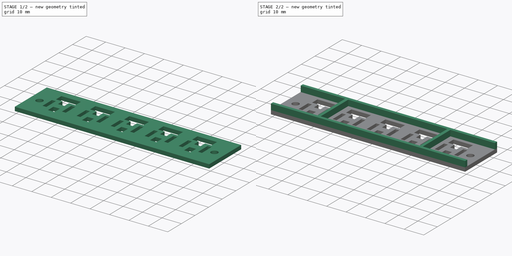
[diagram: build sequence overview — one tinted view per stage of 2, left to right]
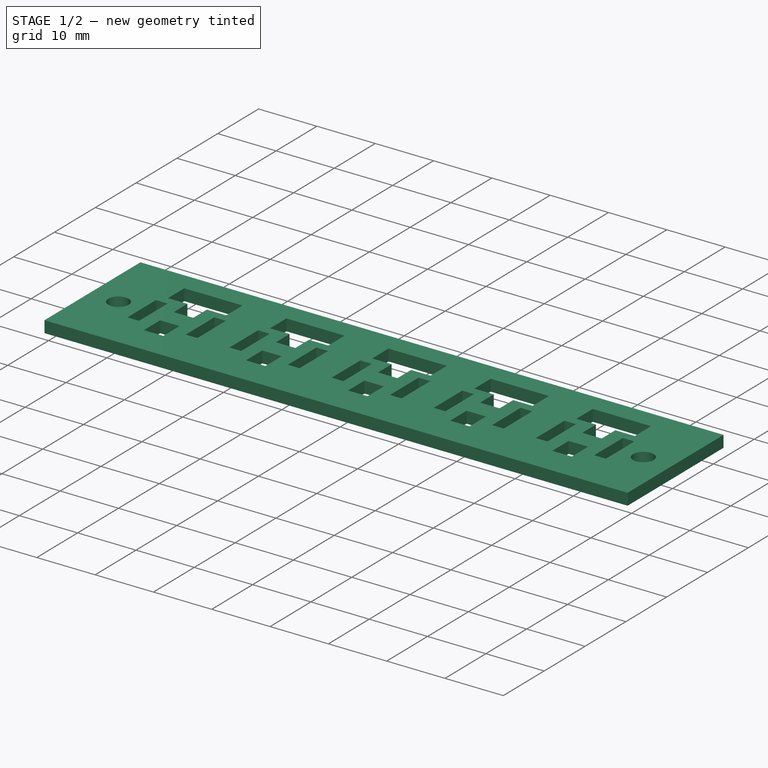
[diagram: stage 1 of 2 — iso view after this stage's code; geometry added in this stage tinted green]
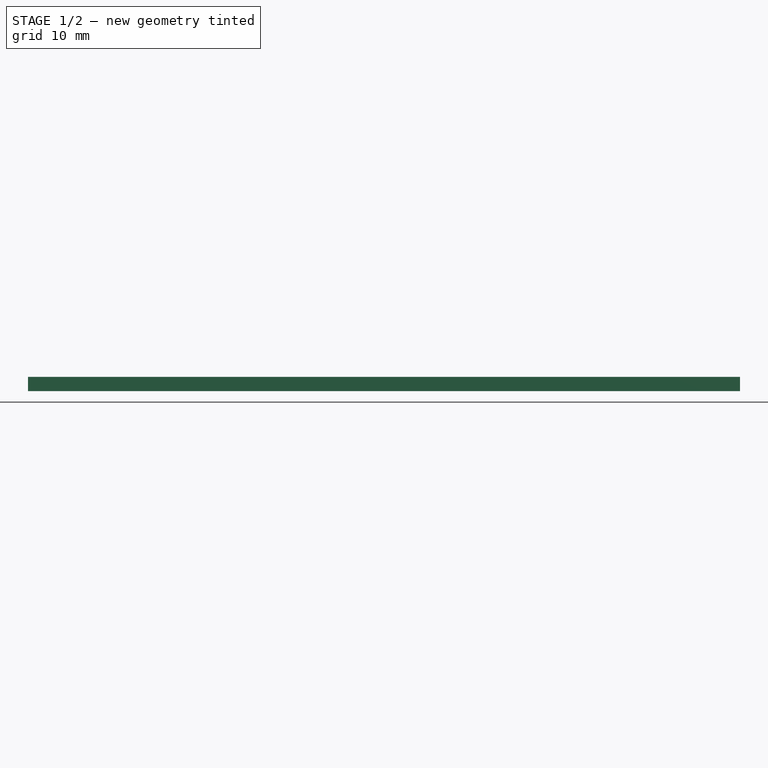
[diagram: stage 1 of 2 — front view after this stage's code; geometry added in this stage tinted green]
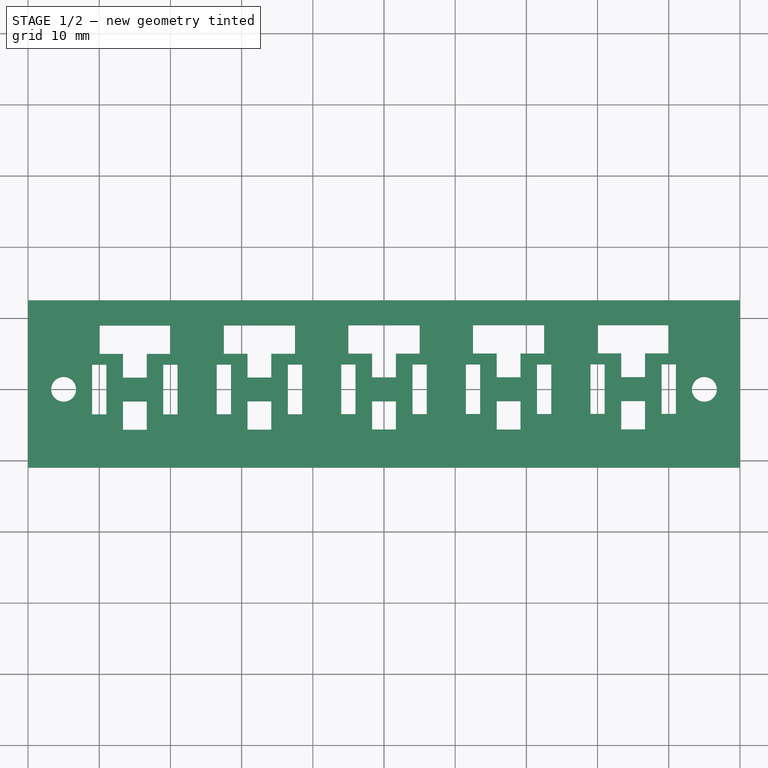
[diagram: stage 1 of 2 — top view after this stage's code; geometry added in this stage tinted green]
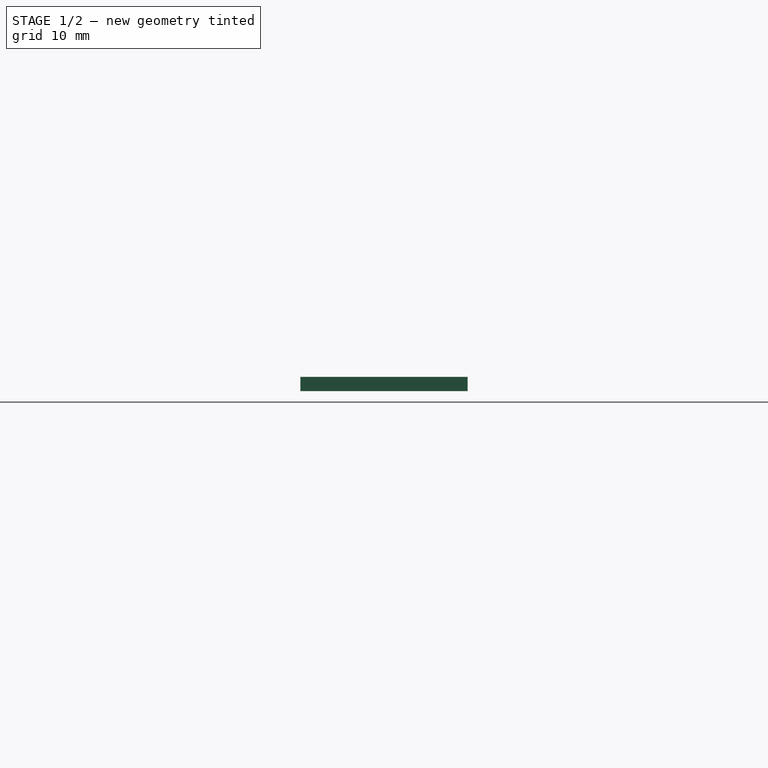
[diagram: stage 1 of 2 — right view after this stage's code; geometry added in this stage tinted green]
FCSTD DOCUMENT  (FreeCAD 0.20R29410 (Git))
Label: Potentiometers-Top
License: All rights reserved
LicenseURL: https://en.wikipedia.org/wiki/All_rights_reserved
objects: App::DocumentObjectGroup×3, PartDesign::CoordinateSystem×2, Sketcher::SketchObject×2, PartDesign::Pad×2, App::FeaturePython×1, PartDesign::Body×1, App::Part×1
note: 9 computed .brp shape members not serialized (recipe doc carries the construction recipe); baked Part::Feature solids carry a one-line shape summary decoded from their .brp

FEATURE [App::DocumentObjectGroup] Parts
FEATURE [PartDesign::CoordinateSystem] LCS_Origin
  AttacherType = Attacher::AttachEngine3D
  MapMode = 2
  Support = -> [X_Axis]
FEATURE [App::DocumentObjectGroup] Constraints
FEATURE [App::FeaturePython] Variables  # WARN: FeaturePython — macro-defined, semantics opaque (R4)
  Type = App::PropertyContainer
FEATURE [App::DocumentObjectGroup] Configurations
FEATURE [PartDesign::CoordinateSystem] LCS_Origin001
  AttacherType = Attacher::AttachEngine3D
  MapMode = 2
  Support = -> [X_Axis001]
FEATURE [Sketcher::SketchObject] Sketch
  FullyConstrained = true
  MapMode = 5
  Support = -> [XY_Plane001]
  sketch-geometry (120):
    g0: LineSegment StartX=-50 StartY=12.5 StartZ=0 EndX=50 EndY=12.5 EndZ=0
    g1: LineSegment StartX=50 StartY=12.5 StartZ=0 EndX=50 EndY=-11 EndZ=0
    g2: LineSegment StartX=50 StartY=-11 StartZ=0 EndX=-50 EndY=-11 EndZ=0
    g3: LineSegment StartX=-50 StartY=-11 StartZ=0 EndX=-50 EndY=12.5 EndZ=0
    g4: Circle CenterX=-45 CenterY=0 CenterZ=0 NormalX=0 NormalY=0 NormalZ=1 AngleXU=0 Radius=1.75
    g5: Circle CenterX=45 CenterY=0 CenterZ=0 NormalX=0 NormalY=0 NormalZ=1 AngleXU=0 Radius=1.75
    g6: LineSegment StartX=-40 StartY=8.97002 StartZ=0 EndX=-30 EndY=8.97002 EndZ=0
    g7: LineSegment StartX=-30 StartY=8.97002 StartZ=0 EndX=-30 EndY=4.97002 EndZ=0
    g8: LineSegment StartX=-40 StartY=4.97002 StartZ=0 EndX=-40 EndY=8.97002 EndZ=0
    g9: LineSegment StartX=-41 StartY=3.47002 StartZ=0 EndX=-39 EndY=3.47002 EndZ=0
    g10: LineSegment StartX=-39 StartY=3.47002 StartZ=0 EndX=-39 EndY=-3.52998 EndZ=0
    g11: LineSegment StartX=-39 StartY=-3.52998 StartZ=0 EndX=-41 EndY=-3.52998 EndZ=0
    g12: LineSegment StartX=-41 StartY=-3.52998 StartZ=0 EndX=-41 EndY=3.47002 EndZ=0
    g13: LineSegment StartX=-31 StartY=3.47002 StartZ=0 EndX=-29 EndY=3.47002 EndZ=0
    g14: LineSegment StartX=-29 StartY=3.47002 StartZ=0 EndX=-29 EndY=-3.52998 EndZ=0
    g15: LineSegment StartX=-29 StartY=-3.52998 StartZ=0 EndX=-31 EndY=-3.52998 EndZ=0
    g16: LineSegment StartX=-31 StartY=-3.52998 StartZ=0 EndX=-31 EndY=3.47002 EndZ=0
    g17: GeomPoint X=-35 Y=6.97002 Z=0
    g18: GeomPoint X=-35 Y=-0.0299752 Z=0
    g19: LineSegment StartX=-22.5 StartY=8.98501 StartZ=0 EndX=-12.5 EndY=8.98501 EndZ=0
    g20: LineSegment StartX=-12.5 StartY=8.98501 StartZ=0 EndX=-12.5 EndY=4.98501 EndZ=0
    g21: LineSegment StartX=-22.5 StartY=4.98501 StartZ=0 EndX=-22.5 EndY=8.98501 EndZ=0
    g22: LineSegment StartX=-23.5 StartY=3.48501 StartZ=0 EndX=-21.5 EndY=3.48501 EndZ=0
    g23: LineSegment StartX=-21.5 StartY=3.48501 StartZ=0 EndX=-21.5 EndY=-3.51499 EndZ=0
    g24: LineSegment StartX=-21.5 StartY=-3.51499 StartZ=0 EndX=-23.5 EndY=-3.51499 EndZ=0
    g25: LineSegment StartX=-23.5 StartY=-3.51499 StartZ=0 EndX=-23.5 EndY=3.48501 EndZ=0
    g26: LineSegment StartX=-13.5 StartY=3.48501 StartZ=0 EndX=-11.5 EndY=3.48501 EndZ=0
    g27: LineSegment StartX=-11.5 StartY=3.48501 StartZ=0 EndX=-11.5 EndY=-3.51499 EndZ=0
    g28: LineSegment StartX=-11.5 StartY=-3.51499 StartZ=0 EndX=-13.5 EndY=-3.51499 EndZ=0
    g29: LineSegment StartX=-13.5 StartY=-3.51499 StartZ=0 EndX=-13.5 EndY=3.48501 EndZ=0
    g30: GeomPoint X=-17.5 Y=6.98501 Z=0
    g31: GeomPoint X=-17.5 Y=-0.0149876 Z=0
    g32: LineSegment StartX=-40 StartY=8.97002 StartZ=0 EndX=-22.5 EndY=8.98501 EndZ=0
    g33: LineSegment StartX=-5 StartY=9 StartZ=0 EndX=5 EndY=9 EndZ=0
    g34: LineSegment StartX=5 StartY=9 StartZ=0 EndX=5 EndY=5 EndZ=0
    g35: LineSegment StartX=-5 StartY=5 StartZ=0 EndX=-5 EndY=9 EndZ=0
    g36: LineSegment StartX=-6 StartY=3.5 StartZ=0 EndX=-4 EndY=3.5 EndZ=0
    g37: LineSegment StartX=-4 StartY=3.5 StartZ=0 EndX=-4 EndY=-3.5 EndZ=0
    g38: LineSegment StartX=-4 StartY=-3.5 StartZ=0 EndX=-6 EndY=-3.5 EndZ=0
    g39: LineSegment StartX=-6 StartY=-3.5 StartZ=0 EndX=-6 EndY=3.5 EndZ=0
    g40: LineSegment StartX=4 StartY=3.5 StartZ=0 EndX=6 EndY=3.5 EndZ=0
    g41: LineSegment StartX=6 StartY=3.5 StartZ=0 EndX=6 EndY=-3.5 EndZ=0
    g42: LineSegment StartX=6 StartY=-3.5 StartZ=0 EndX=4 EndY=-3.5 EndZ=0
    g43: LineSegment StartX=4 StartY=-3.5 StartZ=0 EndX=4 EndY=3.5 EndZ=0
    g44: GeomPoint X=0 Y=7 Z=0
    g45: GeomPoint X=0 Y=0 Z=0
    g46: LineSegment StartX=-22.5 StartY=8.98501 StartZ=0 EndX=-5 EndY=9 EndZ=0
    g47: LineSegment StartX=12.5 StartY=9.01499 StartZ=0 EndX=22.5 EndY=9.01499 EndZ=0
    g48: LineSegment StartX=22.5 StartY=9.01499 StartZ=0 EndX=22.5 EndY=5.01499 EndZ=0
    g49: LineSegment StartX=12.5 StartY=5.01499 StartZ=0 EndX=12.5 EndY=9.01499 EndZ=0
    g50: LineSegment StartX=11.5 StartY=3.51499 StartZ=0 EndX=13.5 EndY=3.51499 EndZ=0
    g51: LineSegment StartX=13.5 StartY=3.51499 StartZ=0 EndX=13.5 EndY=-3.48501 EndZ=0
    g52: LineSegment StartX=13.5 StartY=-3.48501 StartZ=0 EndX=11.5 EndY=-3.48501 EndZ=0
    g53: LineSegment StartX=11.5 StartY=-3.48501 StartZ=0 EndX=11.5 EndY=3.51499 EndZ=0
    g54: LineSegment StartX=21.5 StartY=3.51499 StartZ=0 EndX=23.5 EndY=3.51499 EndZ=0
    g55: LineSegment StartX=23.5 StartY=3.51499 StartZ=0 EndX=23.5 EndY=-3.48501 EndZ=0
    g56: LineSegment StartX=23.5 StartY=-3.48501 StartZ=0 EndX=21.5 EndY=-3.48501 EndZ=0
    g57: LineSegment StartX=21.5 StartY=-3.48501 StartZ=0 EndX=21.5 EndY=3.51499 EndZ=0
    g58: GeomPoint X=17.5 Y=7.01499 Z=0
    g59: GeomPoint X=17.5 Y=0.0149876 Z=0
    g60: LineSegment StartX=-5 StartY=9 StartZ=0 EndX=12.5 EndY=9.01499 EndZ=0
    g61: LineSegment StartX=30 StartY=9.02998 StartZ=0 EndX=40 EndY=9.02998 EndZ=0
    g62: LineSegment StartX=40 StartY=9.02998 StartZ=0 EndX=40 EndY=5.02998 EndZ=0
    g63: LineSegment StartX=30 StartY=5.02998 StartZ=0 EndX=30 EndY=9.02998 EndZ=0
    g64: LineSegment StartX=29 StartY=3.52998 StartZ=0 EndX=31 EndY=3.52998 EndZ=0
    g65: LineSegment StartX=31 StartY=3.52998 StartZ=0 EndX=31 EndY=-3.47002 EndZ=0
    g66: LineSegment StartX=31 StartY=-3.47002 StartZ=0 EndX=29 EndY=-3.47002 EndZ=0
    g67: LineSegment StartX=29 StartY=-3.47002 StartZ=0 EndX=29 EndY=3.52998 EndZ=0
    g68: LineSegment StartX=39 StartY=3.52998 StartZ=0 EndX=41 EndY=3.52998 EndZ=0
    g69: LineSegment StartX=41 StartY=3.52998 StartZ=0 EndX=41 EndY=-3.47002 EndZ=0
    g70: LineSegment StartX=41 StartY=-3.47002 StartZ=0 EndX=39 EndY=-3.47002 EndZ=0
    g71: LineSegment StartX=39 StartY=-3.47002 StartZ=0 EndX=39 EndY=3.52998 EndZ=0
    g72: GeomPoint X=35 Y=7.02998 Z=0
    g73: GeomPoint X=35 Y=0.0299752 Z=0
    g74: LineSegment StartX=12.5 StartY=9.01499 StartZ=0 EndX=30 EndY=9.02998 EndZ=0
    g75: LineSegment StartX=-40 StartY=4.97002 StartZ=0 EndX=-36.6667 EndY=4.97002 EndZ=0
    g76: LineSegment StartX=-30 StartY=4.97002 StartZ=0 EndX=-33.3333 EndY=4.97002 EndZ=0
    g77: LineSegment StartX=-36.6667 StartY=4.97002 StartZ=0 EndX=-36.6667 EndY=1.63669 EndZ=0
    g78: LineSegment StartX=-36.6667 StartY=1.63669 StartZ=0 EndX=-33.3333 EndY=1.63669 EndZ=0
    g79: LineSegment StartX=-33.3333 StartY=1.63669 StartZ=0 EndX=-33.3333 EndY=4.97002 EndZ=0
    g80: LineSegment StartX=-22.5 StartY=4.98501 StartZ=0 EndX=-19.1667 EndY=4.98501 EndZ=0
    g81: LineSegment StartX=-19.1667 StartY=4.98501 StartZ=0 EndX=-19.1667 EndY=1.65168 EndZ=0
    g82: LineSegment StartX=-19.1667 StartY=1.65168 StartZ=0 EndX=-15.8333 EndY=1.65168 EndZ=0
    g83: LineSegment StartX=-15.8333 StartY=1.65168 StartZ=0 EndX=-15.8333 EndY=4.98501 EndZ=0
    g84: LineSegment StartX=-15.8333 StartY=4.98501 StartZ=0 EndX=-12.5 EndY=4.98501 EndZ=0
    g85: LineSegment StartX=-5 StartY=5 StartZ=0 EndX=-1.66667 EndY=5 EndZ=0
    g86: LineSegment StartX=-1.66667 StartY=5 StartZ=0 EndX=-1.66667 EndY=1.66667 EndZ=0
    g87: LineSegment StartX=-1.66667 StartY=1.66667 StartZ=0 EndX=1.66667 EndY=1.66667 EndZ=0
    g88: LineSegment StartX=1.66667 StartY=1.66667 StartZ=0 EndX=1.66667 EndY=5 EndZ=0
    g89: LineSegment StartX=1.66667 StartY=5 StartZ=0 EndX=5 EndY=5 EndZ=0
    g90: LineSegment StartX=12.5 StartY=5.01499 StartZ=0 EndX=15.8333 EndY=5.01499 EndZ=0
    g91: LineSegment StartX=15.8333 StartY=5.01499 StartZ=0 EndX=15.8333 EndY=1.68165 EndZ=0
    g92: LineSegment StartX=15.8333 StartY=1.68165 StartZ=0 EndX=19.1667 EndY=1.68165 EndZ=0
    g93: LineSegment StartX=19.1667 StartY=1.68165 StartZ=0 EndX=19.1667 EndY=5.01499 EndZ=0
    g94: LineSegment StartX=19.1667 StartY=5.01499 StartZ=0 EndX=22.5 EndY=5.01499 EndZ=0
    g95: LineSegment StartX=30 StartY=5.02998 StartZ=0 EndX=33.3333 EndY=5.02998 EndZ=0
    g96: LineSegment StartX=33.3333 StartY=5.02998 StartZ=0 EndX=33.3333 EndY=1.69664 EndZ=0
    g97: LineSegment StartX=33.3333 StartY=1.69664 StartZ=0 EndX=36.6667 EndY=1.69664 EndZ=0
    g98: LineSegment StartX=36.6667 StartY=1.69664 StartZ=0 EndX=36.6667 EndY=5.02998 EndZ=0
    g99: LineSegment StartX=36.6667 StartY=5.02998 StartZ=0 EndX=40 EndY=5.02998 EndZ=0
    g100: LineSegment StartX=33.3333 StartY=-1.63669 StartZ=0 EndX=36.6667 EndY=-1.63669 EndZ=0
    g101: LineSegment StartX=36.6667 StartY=-1.63669 StartZ=0 EndX=36.6667 EndY=-5.63669 EndZ=0
    g102: LineSegment StartX=36.6667 StartY=-5.63669 StartZ=0 EndX=33.3333 EndY=-5.63669 EndZ=0
    g103: LineSegment StartX=33.3333 StartY=-5.63669 StartZ=0 EndX=33.3333 EndY=-1.63669 EndZ=0
    g104: LineSegment StartX=-36.6667 StartY=-1.69664 StartZ=0 EndX=-33.3333 EndY=-1.69664 EndZ=0
    g105: LineSegment StartX=-33.3333 StartY=-1.69664 StartZ=0 EndX=-33.3333 EndY=-5.69664 EndZ=0
    g106: LineSegment StartX=-33.3333 StartY=-5.69664 StartZ=0 EndX=-36.6667 EndY=-5.69664 EndZ=0
    g107: LineSegment StartX=-36.6667 StartY=-5.69664 StartZ=0 EndX=-36.6667 EndY=-1.69664 EndZ=0
    g108: LineSegment StartX=-19.1667 StartY=-1.68165 StartZ=0 EndX=-15.8333 EndY=-1.68165 EndZ=0
    g109: LineSegment StartX=-15.8333 StartY=-1.68165 StartZ=0 EndX=-15.8333 EndY=-5.68165 EndZ=0
    g110: LineSegment StartX=-15.8333 StartY=-5.68165 StartZ=0 EndX=-19.1667 EndY=-5.68165 EndZ=0
    g111: LineSegment StartX=-19.1667 StartY=-5.68165 StartZ=0 EndX=-19.1667 EndY=-1.68165 EndZ=0
    g112: LineSegment StartX=-1.66667 StartY=-1.66667 StartZ=0 EndX=1.66667 EndY=-1.66667 EndZ=0
    g113: LineSegment StartX=1.66667 StartY=-1.66667 StartZ=0 EndX=1.66667 EndY=-5.66667 EndZ=0
    g114: LineSegment StartX=1.66667 StartY=-5.66667 StartZ=0 EndX=-1.66667 EndY=-5.66667 EndZ=0
    g115: LineSegment StartX=-1.66667 StartY=-5.66667 StartZ=0 EndX=-1.66667 EndY=-1.66667 EndZ=0
    g116: LineSegment StartX=15.8333 StartY=-1.65168 StartZ=0 EndX=19.1667 EndY=-1.65168 EndZ=0
    g117: LineSegment StartX=19.1667 StartY=-1.65168 StartZ=0 EndX=19.1667 EndY=-5.65168 EndZ=0
    g118: LineSegment StartX=19.1667 StartY=-5.65168 StartZ=0 EndX=15.8333 EndY=-5.65168 EndZ=0
    g119: LineSegment StartX=15.8333 StartY=-5.65168 StartZ=0 EndX=15.8333 EndY=-1.65168 EndZ=0
  constraints (329):
    c: Coincident(g0,g1)
    c: Coincident(g1,g2)
    c: Coincident(g2,g3)
    c: Coincident(g3,g0)
    c: Horizontal(g0)
    c: Horizontal(g2)
    c: Vertical(g1)
    c: Vertical(g3)
    c: DistanceX(g0,g0) = 100
    c: PointOnObject(g4,g-1)
    c: Equal(g5,g4)
    c: Diameter(g4) = 3.5
    c: Symmetric(g4,g5,g-1)
    c: DistanceX(g4,g5) = 90
    c: Coincident(g6,g7)
    c: Coincident(g8,g6)
    c: Horizontal(g6)
    c: Vertical(g7)
    c: Vertical(g8)
    c: Coincident(g9,g10)
    c: Coincident(g10,g11)
    c: Coincident(g11,g12)
    c: Coincident(g12,g9)
    c: Horizontal(g9)
    c: Horizontal(g11)
    c: Vertical(g10)
    c: Vertical(g12)
    c: Coincident(g13,g14)
    c: Coincident(g14,g15)
    c: Coincident(g15,g16)
    c: Coincident(g16,g13)
    c: Horizontal(g13)
    c: Horizontal(g15)
    c: Vertical(g14)
    c: Vertical(g16)
    c: Equal(g16,g10)
    c: Horizontal(g9,g13)
    c: DistanceY(g14,g14) = 7
    c: Equal(g13,g9)
    c: DistanceX(g15,g15) = 2
    c: DistanceX(g6,g6) = 10
    c: DistanceY(g7,g7) = 4
    c: Symmetric(g7,g6,g17)
    c: Symmetric(g9,g15,g18)
    c: DistanceY(g18,g17) = 7
    c: Vertical(g18,g17)
    c: DistanceX(g10,g15) = 8
    c: Coincident(g19,g20)
    c: Coincident(g21,g19)
    c: Horizontal(g19)
    c: Vertical(g20)
    c: Vertical(g21)
    c: Coincident(g22,g23)
    c: Coincident(g23,g24)
    c: Coincident(g24,g25)
    c: Coincident(g25,g22)
    c: Horizontal(g22)
    c: Horizontal(g24)
    c: Vertical(g23)
    c: Vertical(g25)
    c: Coincident(g26,g27)
    c: Coincident(g27,g28)
    c: Coincident(g28,g29)
    c: Coincident(g29,g26)
    c: Horizontal(g26)
    c: Horizontal(g28)
    c: Vertical(g27)
    c: Vertical(g29)
    c: Equal(g29,g23)
    c: Horizontal(g22,g26)
    c: Equal(g14,g27) = 7
    c: Equal(g26,g22)
    c: Equal(g15,g28) = 2
    c: Equal(g6,g19) = 10
    c: Equal(g7,g20) = 4
    c: Symmetric(g20,g19,g30)
    c: Symmetric(g22,g28,g31)
    c: DistanceY(g31,g30) = 7
    c: Vertical(g31,g30)
    c: DistanceX(g23,g28) = 8
    c: Coincident(g6,g32)
    c: Coincident(g19,g32)
    c: Distance(g32) = 17.5
    c: Angle(g32) = 0.000856434
    c: Coincident(g33,g34)
    c: Coincident(g35,g33)
    c: Horizontal(g33)
    c: Vertical(g34)
    c: Vertical(g35)
    c: Coincident(g36,g37)
    c: Coincident(g37,g38)
    c: Coincident(g38,g39)
    c: Coincident(g39,g36)
    c: Horizontal(g36)
    c: Horizontal(g38)
    c: Vertical(g37)
    c: Vertical(g39)
    c: Coincident(g40,g41)
    c: Coincident(g41,g42)
    c: Coincident(g42,g43)
    c: Coincident(g43,g40)
    c: Horizontal(g40)
    c: Horizontal(g42)
    c: Vertical(g41)
    c: Vertical(g43)
    c: Equal(g43,g37)
    c: Horizontal(g36,g40)
    c: Equal(g14,g41) = 7
    c: Equal(g40,g36)
    c: Equal(g15,g42) = 2
    c: Equal(g6,g33) = 10
    c: Equal(g7,g34) = 4
    c: Symmetric(g34,g33,g44)
    c: Symmetric(g36,g42,g45)
    c: DistanceY(g45,g44) = 7
    c: Vertical(g45,g44)
    c: DistanceX(g37,g42) = 8
    c: Coincident(g19,g46)
    c: Coincident(g33,g46)
    c: Equal(g32,g46)
    c: Parallel(g46,g32)
    c: Coincident(g47,g48)
    c: Coincident(g49,g47)
    c: Horizontal(g47)
    c: Vertical(g48)
    c: Vertical(g49)
    c: Coincident(g50,g51)
    c: Coincident(g51,g52)
    c: Coincident(g52,g53)
    c: Coincident(g53,g50)
    c: Horizontal(g50)
    c: Horizontal(g52)
    c: Vertical(g51)
    c: Vertical(g53)
    c: Coincident(g54,g55)
    c: Coincident(g55,g56)
    c: Coincident(g56,g57)
    c: Coincident(g57,g54)
    c: Horizontal(g54)
    c: Horizontal(g56)
    c: Vertical(g55)
    c: Vertical(g57)
    c: Equal(g57,g51)
    c: Horizontal(g50,g54)
    c: Equal(g14,g55) = 7
    c: Equal(g54,g50)
    c: Equal(g15,g56) = 2
    c: Equal(g6,g47) = 10
    c: Equal(g7,g48) = 4
    c: Symmetric(g48,g47,g58)
    c: Symmetric(g50,g56,g59)
    c: DistanceY(g59,g58) = 7
    c: Vertical(g59,g58)
    c: DistanceX(g51,g56) = 8
    c: Coincident(g33,g60)
    c: Coincident(g47,g60)
    c: Equal(g32,g60)
    c: Parallel(g60,g32)
    c: Coincident(g61,g62)
    c: Coincident(g63,g61)
    c: Horizontal(g61)
    c: Vertical(g62)
    c: Vertical(g63)
    c: Coincident(g64,g65)
    c: Coincident(g65,g66)
    c: Coincident(g66,g67)
    c: Coincident(g67,g64)
    c: Horizontal(g64)
    c: Horizontal(g66)
    c: Vertical(g65)
    c: Vertical(g67)
    c: Coincident(g68,g69)
    c: Coincident(g69,g70)
    c: Coincident(g70,g71)
    c: Coincident(g71,g68)
    c: Horizontal(g68)
    c: Horizontal(g70)
    c: Vertical(g69)
    c: Vertical(g71)
    c: Equal(g71,g65)
    c: Horizontal(g64,g68)
    c: Equal(g14,g69) = 7
    c: Equal(g68,g64)
    c: Equal(g15,g70) = 2
    c: Equal(g6,g61) = 10
    c: Equal(g7,g62) = 4
    c: Symmetric(g62,g61,g72)
    c: Symmetric(g64,g70,g73)
    c: DistanceY(g73,g72) = 7
    c: Vertical(g73,g72)
    c: DistanceX(g65,g70) = 8
    c: Coincident(g47,g74)
    c: Coincident(g61,g74)
    c: Equal(g32,g74)
    c: Parallel(g74,g32)
    c: Coincident(g45,g-1)
    c: DistanceY(g45,g0) = 12.5
    c: DistanceY(g1,g45) = 11
    c: DistanceX(g45,g1) = 50
    c: Coincident(g75,g8)
    c: Horizontal(g75)
    c: Coincident(g76,g7)
    c: Horizontal(g76)
    c: Coincident(g77,g75)
    c: Vertical(g77)
    c: Coincident(g78,g77)
    c: Horizontal(g78)
    c: Coincident(g79,g78)
    c: Coincident(g79,g76)
    c: Vertical(g79)
    c: Equal(g75,g78)
    c: Equal(g78,g77)
    c: Equal(g77,g79)
    c: Equal(g79,g76)
    c: Coincident(g80,g21)
    c: Coincident(g81,g80)
    c: Vertical(g81)
    c: Coincident(g82,g81)
    c: Horizontal(g82)
    c: Coincident(g83,g82)
    c: Vertical(g83)
    c: Coincident(g84,g83)
    c: Coincident(g84,g20)
    c: Horizontal(g84)
    c: Horizontal(g80)
    c: Equal(g80,g81)
    c: Equal(g81,g82)
    c: Equal(g82,g83)
    c: Equal(g83,g84)
    c: Coincident(g85,g35)
    c: Horizontal(g85)
    c: Coincident(g86,g85)
    c: Vertical(g86)
    c: Coincident(g87,g86)
    c: Horizontal(g87)
    c: Coincident(g88,g87)
    c: Vertical(g88)
    c: Coincident(g89,g88)
    c: Coincident(g89,g34)
    c: Horizontal(g89)
    c: Equal(g89,g88)
    c: Equal(g88,g87)
    c: Equal(g87,g86)
    c: Equal(g86,g85)
    c: Coincident(g90,g49)
    c: Horizontal(g90)
    c: Coincident(g91,g90)
    c: Vertical(g91)
    c: Coincident(g92,g91)
    c: Horizontal(g92)
    c: Coincident(g93,g92)
    c: Vertical(g93)
    c: Coincident(g94,g93)
    c: Coincident(g94,g48)
    c: Horizontal(g94)
    c: Equal(g94,g93)
    c: Equal(g93,g92)
    c: Equal(g92,g91)
    c: Equal(g91,g90)
    c: Coincident(g95,g63)
    c: Horizontal(g95)
    c: Coincident(g96,g95)
    c: Vertical(g96)
    c: Coincident(g97,g96)
    c: Horizontal(g97)
    c: Vertical(g98)
    c: Coincident(g99,g98)
    c: Coincident(g99,g62)
    c: Horizontal(g99)
    c: Equal(g99,g98)
    c: Equal(g98,g97)
    c: Equal(g97,g96)
    c: Equal(g96,g95)
    c: Coincident(g97,g98)
    c: Coincident(g100,g101)
    c: Coincident(g101,g102)
    c: Coincident(g102,g103)
    c: Coincident(g103,g100)
    c: Horizontal(g100)
    c: Horizontal(g102)
    c: Vertical(g101)
    c: Vertical(g103)
    c: Symmetric(g96,g100,g73)
    c: Equal(g97,g100)
    c: Coincident(g104,g105)
    c: Coincident(g105,g106)
    c: Coincident(g106,g107)
    c: Coincident(g107,g104)
    c: Horizontal(g104)
    c: Horizontal(g106)
    c: Vertical(g105)
    c: Vertical(g107)
    c: Equal(g104,g78)
    c: Symmetric(g77,g104,g18)
    c: DistanceY(g107,g107) = 4
    c: Coincident(g108,g109)
    c: Coincident(g109,g110)
    c: Coincident(g110,g111)
    c: Coincident(g111,g108)
    c: Horizontal(g108)
    c: Horizontal(g110)
    c: Vertical(g109)
    c: Vertical(g111)
    c: Coincident(g112,g113)
    c: Coincident(g113,g114)
    c: Coincident(g114,g115)
    c: Coincident(g115,g112)
    c: Horizontal(g112)
    c: Horizontal(g114)
    c: Vertical(g113)
    c: Vertical(g115)
    c: Coincident(g116,g117)
    c: Coincident(g117,g118)
    c: Coincident(g118,g119)
    c: Coincident(g119,g116)
    c: Horizontal(g116)
    c: Horizontal(g118)
    c: Vertical(g117)
    c: Vertical(g119)
    c: Symmetric(g81,g108,g31)
    c: Equal(g108,g82)
    c: Symmetric(g86,g112,g45)
    c: Equal(g87,g112)
    c: Equal(g92,g116)
    c: Symmetric(g91,g116,g59)
    c: Equal(g103,g119)
    c: Equal(g119,g115)
    c: Equal(g115,g111)
    c: Equal(g111,g107)
FEATURE [PartDesign::Pad] Pad  label="Plate"
  Direction = (0,0,1)
  Length = 2
  Length2 = 10
  Profile = -> Sketch
  ReferenceAxis = -> Sketch [N_Axis]
  Refine = true
  Type = 0
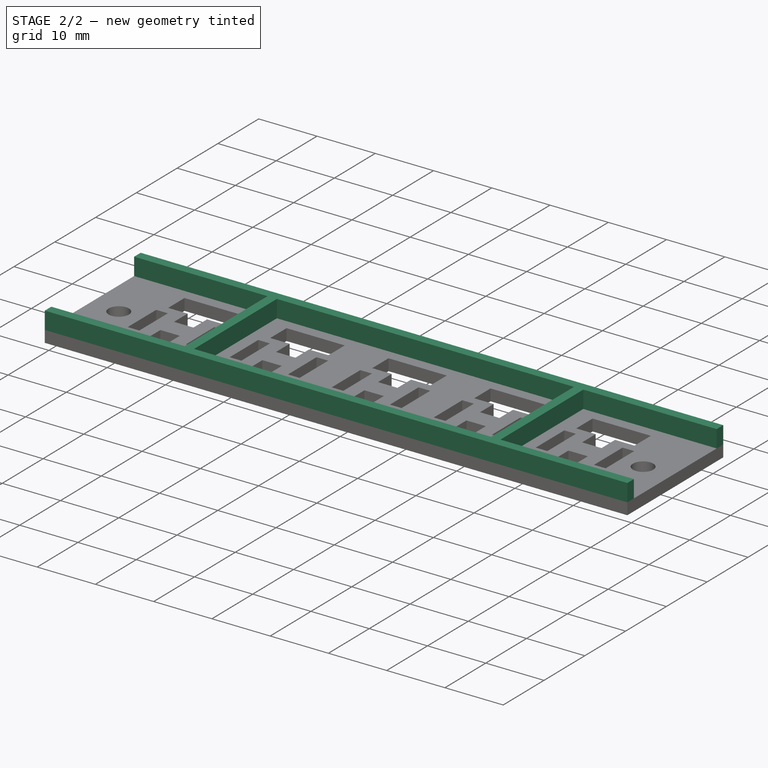
[diagram: stage 2 of 2 — iso view after this stage's code; geometry added in this stage tinted green]
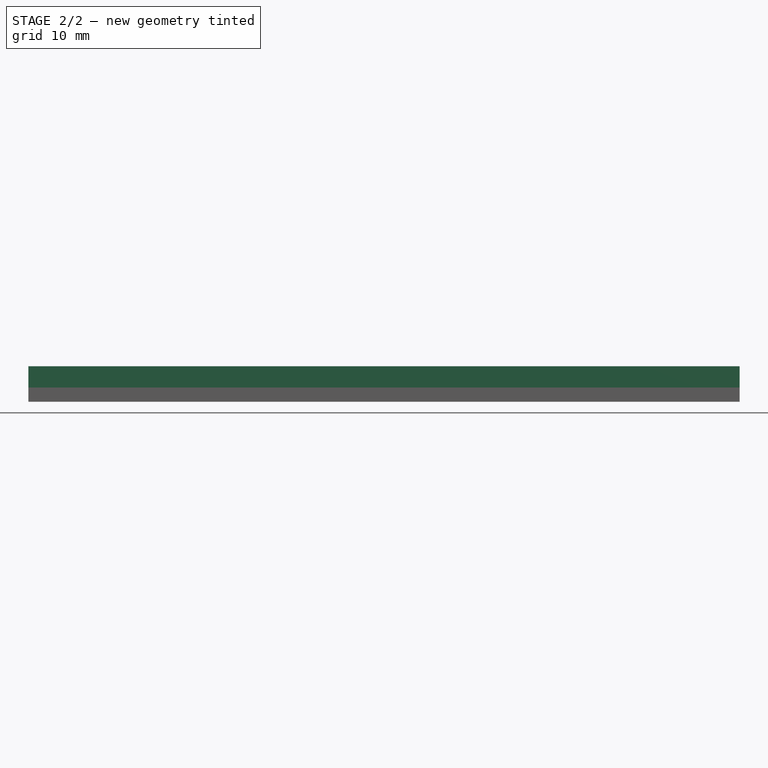
[diagram: stage 2 of 2 — front view after this stage's code; geometry added in this stage tinted green]
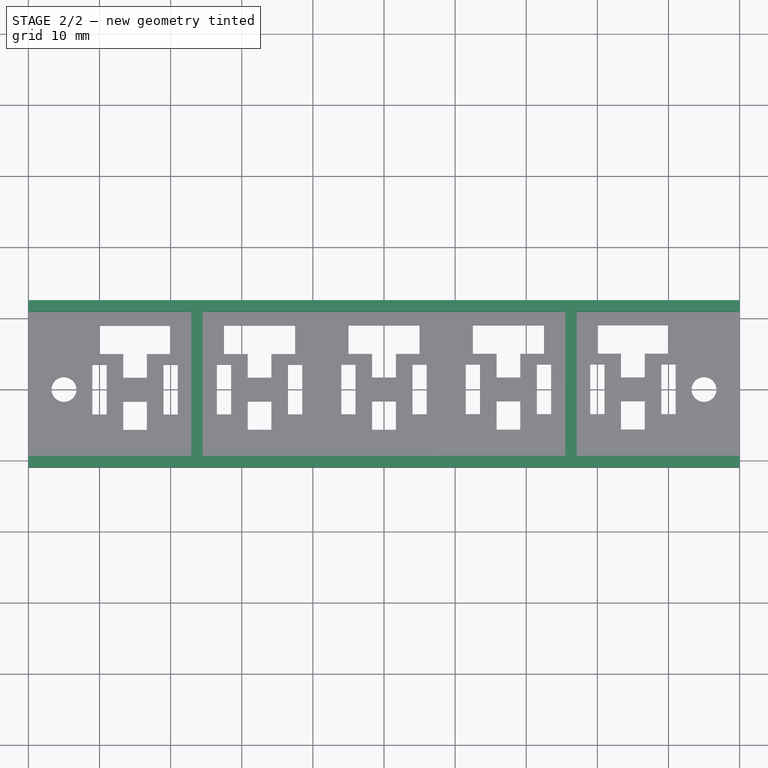
[diagram: stage 2 of 2 — top view after this stage's code; geometry added in this stage tinted green]
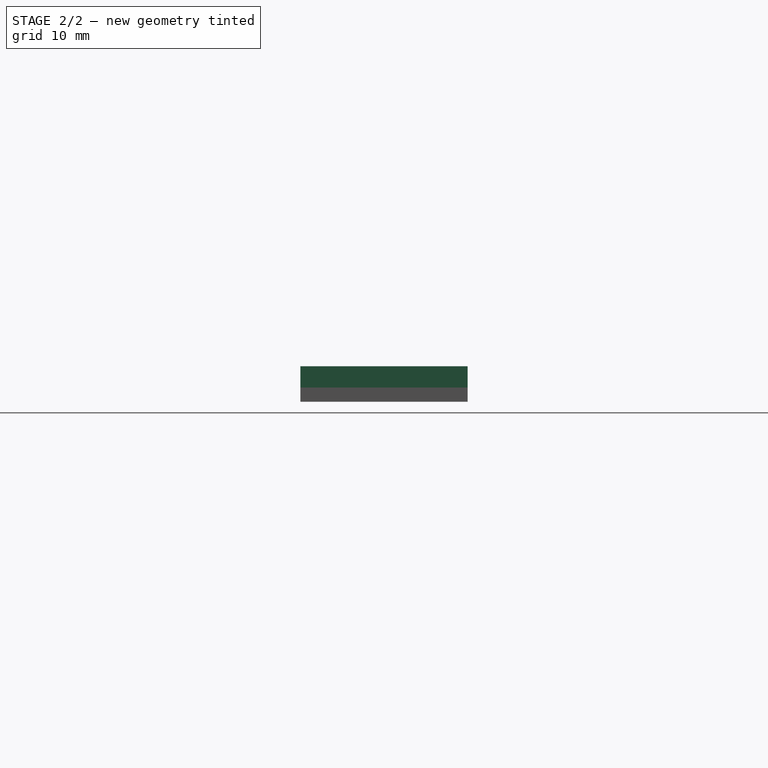
[diagram: stage 2 of 2 — right view after this stage's code; geometry added in this stage tinted green]
FEATURE [Sketcher::SketchObject] Sketch001
  ExternalGeometry = -> [Pad]
  FullyConstrained = true
  MapMode = 5
  Support = -> [XY_Plane001]
  sketch-geometry (18):
    g0: LineSegment StartX=-25.5 StartY=10.9 StartZ=0 EndX=-25.5 EndY=-9.4 EndZ=0
    g1: LineSegment StartX=-50 StartY=12.5 StartZ=0 EndX=-50 EndY=10.9 EndZ=0
    g2: LineSegment StartX=-50 StartY=10.9 StartZ=0 EndX=-27.1 EndY=10.9 EndZ=0
    g3: LineSegment StartX=-27.1 StartY=10.9 StartZ=0 EndX=-27.1 EndY=-9.4 EndZ=0
    g4: LineSegment StartX=-27.1 StartY=-9.4 StartZ=0 EndX=-50 EndY=-9.4 EndZ=0
    g5: LineSegment StartX=-50 StartY=-9.4 StartZ=0 EndX=-50 EndY=-11 EndZ=0
    g6: LineSegment StartX=-50 StartY=12.5 StartZ=0 EndX=50 EndY=12.5 EndZ=0
    g7: LineSegment StartX=-25.5 StartY=-9.4 StartZ=0 EndX=25.5 EndY=-9.4 EndZ=0
    g8: LineSegment StartX=25.5 StartY=-9.4 StartZ=0 EndX=25.5 EndY=10.9 EndZ=0
    g9: LineSegment StartX=25.5 StartY=10.9 StartZ=0 EndX=-25.5 EndY=10.9 EndZ=0
    g10: LineSegment StartX=27.1 StartY=10.9 StartZ=0 EndX=50 EndY=10.9 EndZ=0
    g11: LineSegment StartX=50 StartY=10.9 StartZ=0 EndX=50 EndY=12.5 EndZ=0
    g12: LineSegment StartX=27.1 StartY=10.9 StartZ=0 EndX=27.1 EndY=-9.4 EndZ=0
    g13: LineSegment StartX=27.1 StartY=-9.4 StartZ=0 EndX=50 EndY=-9.4 EndZ=0
    g14: LineSegment StartX=50 StartY=-9.4 StartZ=0 EndX=50 EndY=-11 EndZ=0
    g15: LineSegment StartX=-27.1 StartY=10.9 StartZ=0 EndX=-25.5 EndY=10.9 EndZ=0
    g16: LineSegment StartX=27.1 StartY=10.9 StartZ=0 EndX=25.5 EndY=10.9 EndZ=0
    g17: LineSegment StartX=-50 StartY=-11 StartZ=0 EndX=50 EndY=-11 EndZ=0
  constraints (48):
    c: Vertical(g0)
    c: Coincident(g1,g-4)
    c: Coincident(g2,g1)
    c: Horizontal(g2)
    c: Coincident(g3,g2)
    c: Vertical(g3)
    c: Horizontal(g4)
    c: Coincident(g5,g4)
    c: Coincident(g6,g1)
    c: Coincident(g6,g-6)
    c: Coincident(g4,g3)
    c: Coincident(g7,g0)
    c: Horizontal(g7)
    c: Coincident(g8,g7)
    c: Vertical(g8)
    c: Coincident(g9,g8)
    c: Coincident(g9,g0)
    c: Horizontal(g9)
    c: PointOnObject(g10,g-6)
    c: Horizontal(g10)
    c: Coincident(g11,g10)
    c: Coincident(g12,g10)
    c: Vertical(g12)
    c: Coincident(g13,g12)
    c: PointOnObject(g13,g-6)
    c: Horizontal(g13)
    c: Coincident(g14,g13)
    c: Coincident(g15,g2)
    c: Coincident(g15,g0)
    c: Horizontal(g15)
    c: Coincident(g16,g10)
    c: Coincident(g16,g8)
    c: Horizontal(g16)
    c: Equal(g5,g1)
    c: Equal(g1,g15)
    c: Equal(g15,g16)
    c: DistanceY(g5,g5) = 1.6
    c: Vertical(g1)
    c: Vertical(g5)
    c: Coincident(g5,g-5)
    c: Horizontal(g3,g0)
    c: Horizontal(g7,g12)
    c: Equal(g2,g10)
    c: DistanceX(g9,g9) = 51
    c: Coincident(g17,g5)
    c: Coincident(g17,g14)
    c: Coincident(g14,g-6)
    c: Coincident(g11,g6)
FEATURE [PartDesign::Pad] Pad001  label="Reinforcement"
  BaseFeature = -> Pad
  Direction = (0,0,1)
  Length = 5
  Length2 = 10
  Profile = -> Sketch001
  ReferenceAxis = -> Sketch001 [N_Axis]
  Type = 0
FEATURE [PartDesign::Body] Body
  Group = -> [LCS_Origin001,Sketch,Pad,Sketch001,Pad001]
  Origin = -> Origin001
  Tip = -> Pad001
FEATURE [App::Part] Assembly
  AssemblyType = Part::Link
  Group = -> [LCS_Origin,Constraints,Variables,Configurations,Body]
  Origin = -> Origin
  Type = Assembly
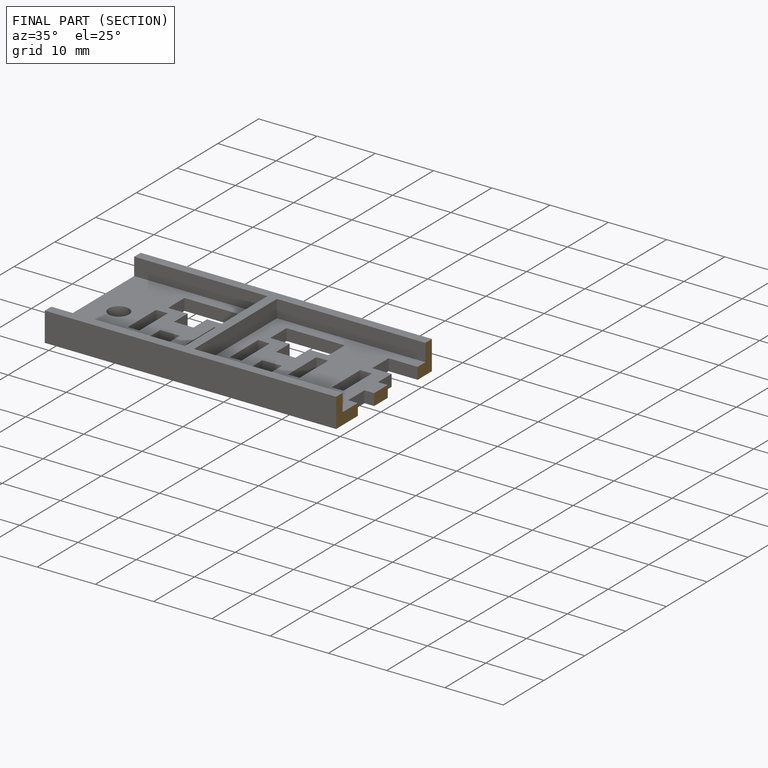
[diagram: finished part — half-section view (interior)]
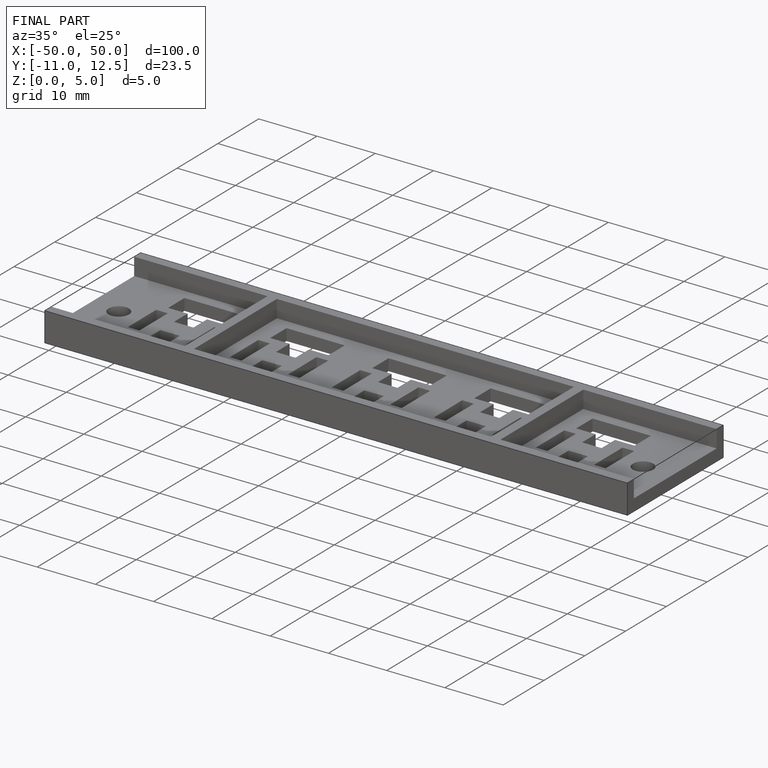
[diagram: finished part — iso view with bounding-box wireframe]
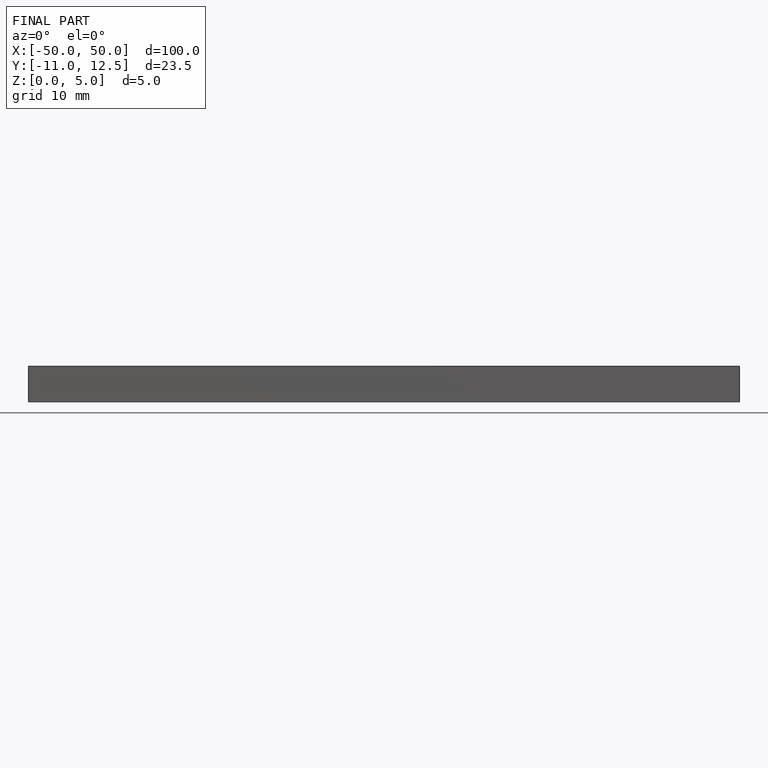
[diagram: finished part — front view with bounding-box wireframe]
